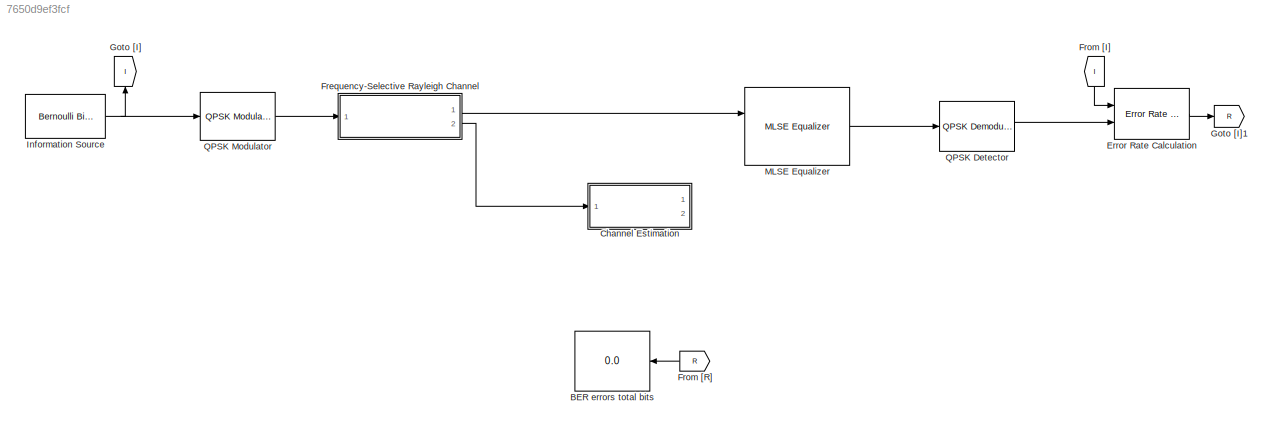
MODEL slx_7650d9ef3fcf
KIND model
CONFIG AbsTol = auto
CONFIG FixedStep = auto
CONFIG MaxStep = auto
CONFIG MinStep = auto
CONFIG RelTol = 1e-3
CONFIG SampleTimeConstraint = Unconstrained
CONFIG Solver = ode45
CONFIG SolverMode = Auto
CONFIG SolverName = ode45
CONFIG StartTime = 0.0
CONFIG StopTime = Inf
BLOCK [Display] BER errors total bits
  Decimation = 1
  Format = short_e
  Ports = [1]
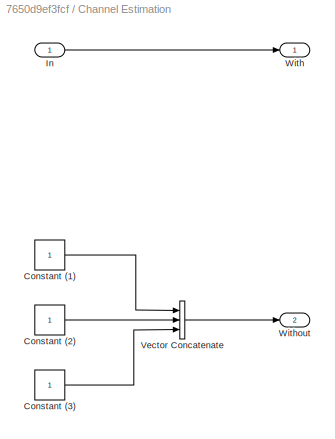
BLOCK [SubSystem] Channel Estimation
  Ports = [1, 2]
  RequestExecContextInheritance = off
BLOCK [Constant] Channel Estimation/Constant (1)
BLOCK [Constant] Channel Estimation/Constant (2)
BLOCK [Constant] Channel Estimation/Constant (3)
BLOCK [Inport] Channel Estimation/In
  IconDisplay = Port number
BLOCK [Concatenate] Channel Estimation/Vector Concatenate
  NumInputs = 3
  Ports = [3, 1]
BLOCK [Outport] Channel Estimation/With
  IconDisplay = Port number
BLOCK [Outport] Channel Estimation/Without
  IconDisplay = Port number
  Port = 2
BLOCK [Reference] Error Rate Calculation  REF=commsink2/Error Rate
Calculation
  N = 0
  PMode = Port
  Ports = [2, 1]
  RsMode2 = off
  SourceBlock = commsink2/Error Rate\nCalculation
  SourceType = Error Rate Calculation
  WsName = ErrorVec
  cp_mode = Entire frame
  maxBits = 1e6
  numErr = 100
  st_delay = 0
  stop = off
  subframe = []
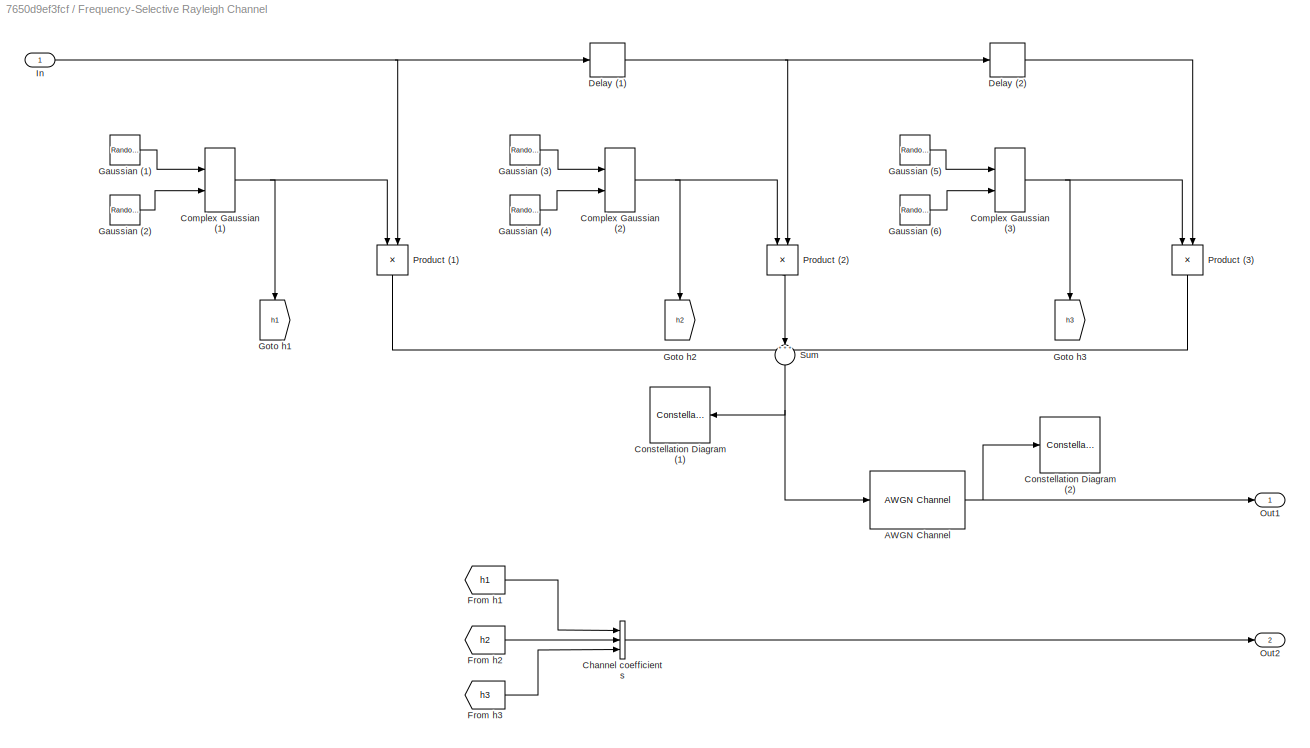
BLOCK [SubSystem] Frequency-Selective Rayleigh Channel
  Ports = [1, 2]
  RequestExecContextInheritance = off
BLOCK [Reference] Frequency-Selective Rayleigh Channel/AWGN Channel  REF=commchan3/AWGN
Channel
  EbNodB = 14
  EsNodB = 20
  InputProcessing = Columns as channels (frame based)
  Ports = [1, 1]
  Ps = 1
  SNRdB = 40
  SourceBlock = commchan3/AWGN\nChannel
  SourceType = AWGN Channel
  Tsym = .002
  UserDataPersistent = on
  bitsPerSym = 2
  noiseMode = Signal to noise ratio  (SNR)
  seed = 67
  variance = 1
BLOCK [Concatenate] Frequency-Selective Rayleigh Channel/Channel coefficients
  NumInputs = 3
  Ports = [3, 1]
BLOCK [RealImagToComplex] Frequency-Selective Rayleigh Channel/Complex Gaussian (1)
  Ports = [2, 1]
BLOCK [RealImagToComplex] Frequency-Selective Rayleigh Channel/Complex Gaussian (2)
  Ports = [2, 1]
BLOCK [RealImagToComplex] Frequency-Selective Rayleigh Channel/Complex Gaussian (3)
  Ports = [2, 1]
BLOCK [ConstellationDiagram] Frequency-Selective Rayleigh Channel/Constellation Diagram (1)
  Ports = [1]
  ScopeSpecificationString = comm.scopes.ConstellationDiagramBlockCfg('CurrentConfiguration', extmgr.ConfigurationSet(extmgr.Configuration('Core','General UI',true),extmgr.Configuration('Core','Source UI',true),extmgr.Configuration('Sources','WiredSimulink',true),extmgr.Configuration('Sources','Simulink',false),extmgr.Configuration('Sources','File',false),extmgr.Configuration('Sources','Workspace',false),extmgr.Configuration(...<+1635ch>
BLOCK [ConstellationDiagram] Frequency-Selective Rayleigh Channel/Constellation Diagram (2)
  Ports = [1]
  ScopeSpecificationString = comm.scopes.ConstellationDiagramBlockCfg('CurrentConfiguration', extmgr.ConfigurationSet(extmgr.Configuration('Core','General UI',true),extmgr.Configuration('Core','Source UI',true),extmgr.Configuration('Sources','WiredSimulink',true),extmgr.Configuration('Sources','Simulink',false),extmgr.Configuration('Sources','File',false),extmgr.Configuration('Sources','Workspace',false),extmgr.Configuration(...<+1636ch>
BLOCK [Delay] Frequency-Selective Rayleigh Channel/Delay (1)
  DelayLength = 1
  InitialCondition = 0
  InputPortMap = u0
  InputProcessing = Columns as channels (frame based)
  Ports = [1, 1]
  SampleTime = 1
BLOCK [Delay] Frequency-Selective Rayleigh Channel/Delay (2)
  DelayLength = 1
  InitialCondition = 0
  InputPortMap = u0
  InputProcessing = Columns as channels (frame based)
  Ports = [1, 1]
  SampleTime = 1
BLOCK [From] Frequency-Selective Rayleigh Channel/From h1
  GotoTag = h1
BLOCK [From] Frequency-Selective Rayleigh Channel/From h2
  GotoTag = h2
BLOCK [From] Frequency-Selective Rayleigh Channel/From h3
  GotoTag = h3
BLOCK [RandomNumber] Frequency-Selective Rayleigh Channel/Gaussian (1)
  SampleTime = 1
  Variance = 1/6
BLOCK [RandomNumber] Frequency-Selective Rayleigh Channel/Gaussian (2)
  SampleTime = 1
  Seed = 2^30
  Variance = 1/6
BLOCK [RandomNumber] Frequency-Selective Rayleigh Channel/Gaussian (3)
  SampleTime = 1
  Seed = 2^31
  Variance = 1/6
BLOCK [RandomNumber] Frequency-Selective Rayleigh Channel/Gaussian (4)
  SampleTime = 1
  Seed = 2^32
  Variance = 1/6
BLOCK [RandomNumber] Frequency-Selective Rayleigh Channel/Gaussian (5)
  SampleTime = 1
  Seed = 2^33
  Variance = 1/6
BLOCK [RandomNumber] Frequency-Selective Rayleigh Channel/Gaussian (6)
  SampleTime = 1
  Seed = 2^34
  Variance = 1/6
BLOCK [Goto] Frequency-Selective Rayleigh Channel/Goto h1
  GotoTag = h1
BLOCK [Goto] Frequency-Selective Rayleigh Channel/Goto h2
  GotoTag = h2
BLOCK [Goto] Frequency-Selective Rayleigh Channel/Goto h3
  GotoTag = h3
BLOCK [Inport] Frequency-Selective Rayleigh Channel/In
  IconDisplay = Port number
BLOCK [Outport] Frequency-Selective Rayleigh Channel/Out1
  IconDisplay = Port number
BLOCK [Outport] Frequency-Selective Rayleigh Channel/Out2
  IconDisplay = Port number
  Port = 2
BLOCK [Product] Frequency-Selective Rayleigh Channel/Product (1)
  InputSameDT = off
  OutDataTypeStr = Inherit: Inherit via internal rule
  Ports = [2, 1]
  RndMeth = Floor
  SaturateOnIntegerOverflow = off
BLOCK [Product] Frequency-Selective Rayleigh Channel/Product (2)
  InputSameDT = off
  OutDataTypeStr = Inherit: Inherit via internal rule
  Ports = [2, 1]
  RndMeth = Floor
  SaturateOnIntegerOverflow = off
BLOCK [Product] Frequency-Selective Rayleigh Channel/Product (3)
  InputSameDT = off
  OutDataTypeStr = Inherit: Inherit via internal rule
  Ports = [2, 1]
  RndMeth = Floor
  SaturateOnIntegerOverflow = off
BLOCK [Sum] Frequency-Selective Rayleigh Channel/Sum
  IconShape = round
  InputSameDT = off
  Inputs = +++
  OutDataTypeStr = Inherit: Inherit via internal rule
  Ports = [3, 1]
  SaturateOnIntegerOverflow = off
BLOCK [From] From [I]
  GotoTag = I
BLOCK [From] From [R]
  GotoTag = R
BLOCK [Goto] Goto [I]
  GotoTag = I
BLOCK [Goto] Goto [I]1
  GotoTag = R
BLOCK [Reference] Information Source  REF=commrandsrc2/Bernoulli Binary
Generator
  P = 0.5
  Ports = [0, 1]
  SourceBlock = commrandsrc2/Bernoulli Binary\nGenerator
  SourceType = Bernoulli Binary Generator
  Ts = .001
  frameBased = on
  orient = off
  outDataType = double
  sampPerFrame = 1000
  seed = 61
BLOCK [Reference] MLSE Equalizer  REF=commeq2/MLSE Equalizer
  Ports = [2, 1]
  SourceBlock = commeq2/MLSE Equalizer
  SourceType = MLSE Equalizer
  chancoeff = [1 1 1]'
  constpts = [1+j -1+j -1-j 1-j]*sqrt(2)/2
  enpostamble = off
  enpreamble = off
  numsamp = 1
  opmode = Reset every frame
  postamble = [0 2 3 1]
  preamble = [0 3 2 1]
  reset = off
  specchan = Input port
  tbdepth = 500
BLOCK [Reference] QPSK Detector  REF=commdigbbndpm3/QPSK
Demodulator
Baseband
  Dec = Gray
  DecType = Hard decision
  OutType = Bit
  Ph = pi/4
  Ports = [1, 1]
  SourceBlock = commdigbbndpm3/QPSK\nDemodulator\nBaseband
  SourceType = QPSK Demodulator Baseband
  VarSource = Dialog
  Variance = 1
  derotateFactorDTMode = Same word length as input
  derotateFactorWordLen = 16
  outDtype1 = Inherit via internal rule
  outDtype2 = Inherit via internal rule
BLOCK [Reference] QPSK Modulator  REF=commdigbbndpm3/QPSK
Modulator
Baseband
  Enc = Gray
  InType = Bit
  Ph = pi/4
  Ports = [1, 1]
  SourceBlock = commdigbbndpm3/QPSK\nModulator\nBaseband
  SourceType = QPSK Modulator Baseband
  outDtype = double
  outFracLen = 15
  outFracLenMode = Best precision
  outUDDataType = sfix(16)
  outWordLen = 16
LINE Channel Estimation/Constant (1):1 -> Channel Estimation/Vector Concatenate:1
LINE Channel Estimation/Constant (2):1 -> Channel Estimation/Vector Concatenate:2
LINE Channel Estimation/Constant (3):1 -> Channel Estimation/Vector Concatenate:3
LINE Channel Estimation/In:1 -> Channel Estimation/With:1
LINE Channel Estimation/Vector Concatenate:1 -> Channel Estimation/Without:1
LINE Error Rate Calculation:1 -> Goto [I]1:1
NET Frequency-Selective Rayleigh Channel/AWGN Channel:1 -> Frequency-Selective Rayleigh Channel/Constellation Diagram (2):1, Frequency-Selective Rayleigh Channel/Out1:1
LINE Frequency-Selective Rayleigh Channel/Channel coefficients:1 -> Frequency-Selective Rayleigh Channel/Out2:1
NET Frequency-Selective Rayleigh Channel/Complex Gaussian (1):1 -> Frequency-Selective Rayleigh Channel/Goto h1:1, Frequency-Selective Rayleigh Channel/Product (1):1
NET Frequency-Selective Rayleigh Channel/Complex Gaussian (2):1 -> Frequency-Selective Rayleigh Channel/Goto h2:1, Frequency-Selective Rayleigh Channel/Product (2):1
NET Frequency-Selective Rayleigh Channel/Complex Gaussian (3):1 -> Frequency-Selective Rayleigh Channel/Goto h3:1, Frequency-Selective Rayleigh Channel/Product (3):1
NET Frequency-Selective Rayleigh Channel/Delay (1):1 -> Frequency-Selective Rayleigh Channel/Delay (2):1, Frequency-Selective Rayleigh Channel/Product (2):2
LINE Frequency-Selective Rayleigh Channel/Delay (2):1 -> Frequency-Selective Rayleigh Channel/Product (3):2
LINE Frequency-Selective Rayleigh Channel/From h1:1 -> Frequency-Selective Rayleigh Channel/Channel coefficients:1
LINE Frequency-Selective Rayleigh Channel/From h2:1 -> Frequency-Selective Rayleigh Channel/Channel coefficients:2
LINE Frequency-Selective Rayleigh Channel/From h3:1 -> Frequency-Selective Rayleigh Channel/Channel coefficients:3
LINE Frequency-Selective Rayleigh Channel/Gaussian (1):1 -> Frequency-Selective Rayleigh Channel/Complex Gaussian (1):1
LINE Frequency-Selective Rayleigh Channel/Gaussian (2):1 -> Frequency-Selective Rayleigh Channel/Complex Gaussian (1):2
LINE Frequency-Selective Rayleigh Channel/Gaussian (3):1 -> Frequency-Selective Rayleigh Channel/Complex Gaussian (2):1
LINE Frequency-Selective Rayleigh Channel/Gaussian (4):1 -> Frequency-Selective Rayleigh Channel/Complex Gaussian (2):2
LINE Frequency-Selective Rayleigh Channel/Gaussian (5):1 -> Frequency-Selective Rayleigh Channel/Complex Gaussian (3):1
LINE Frequency-Selective Rayleigh Channel/Gaussian (6):1 -> Frequency-Selective Rayleigh Channel/Complex Gaussian (3):2
NET Frequency-Selective Rayleigh Channel/In:1 -> Frequency-Selective Rayleigh Channel/Delay (1):1, Frequency-Selective Rayleigh Channel/Product (1):2
LINE Frequency-Selective Rayleigh Channel/Product (1):1 -> Frequency-Selective Rayleigh Channel/Sum:1
LINE Frequency-Selective Rayleigh Channel/Product (2):1 -> Frequency-Selective Rayleigh Channel/Sum:2
LINE Frequency-Selective Rayleigh Channel/Product (3):1 -> Frequency-Selective Rayleigh Channel/Sum:3
NET Frequency-Selective Rayleigh Channel/Sum:1 -> Frequency-Selective Rayleigh Channel/AWGN Channel:1, Frequency-Selective Rayleigh Channel/Constellation Diagram (1):1
LINE Frequency-Selective Rayleigh Channel:1 -> MLSE Equalizer:1
LINE Frequency-Selective Rayleigh Channel:2 -> Channel Estimation:1
LINE From [I]:1 -> Error Rate Calculation:1
LINE From [R]:1 -> BER errors total bits:1
NET Information Source:1 -> Goto [I]:1, QPSK Modulator:1
LINE MLSE Equalizer:1 -> QPSK Detector:1
LINE QPSK Detector:1 -> Error Rate Calculation:2
LINE QPSK Modulator:1 -> Frequency-Selective Rayleigh Channel:1
note: NET lines group one-source signal fan-out (src -> all destinations, sorted); 1:1 wires keep LINE
